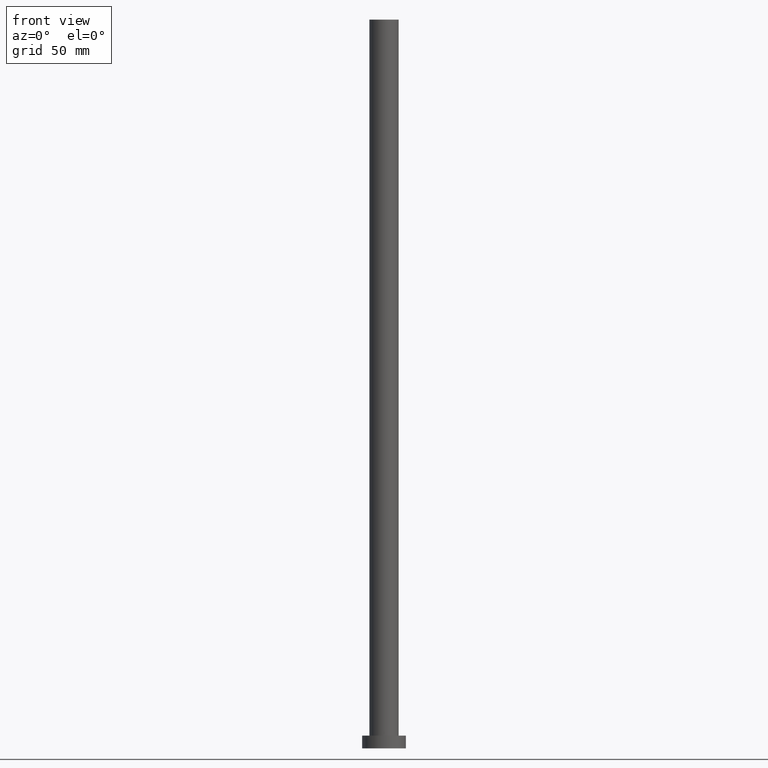
[diagram: clean part render]
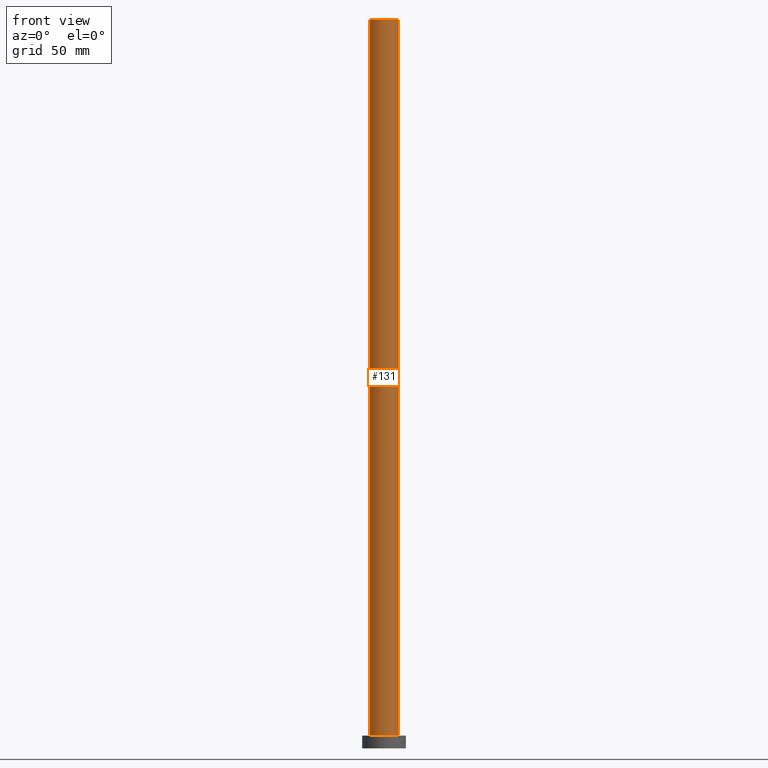
[diagram: same view with one face highlighted and labeled with its STEP entity id]
A machine part, front view. The second image highlights one B-rep face of the part: STEP entity #131.
In plain terms, the highlighted cylindrical surface (edge-blend (fillet) strip) has radius 8 mm, axis along (-0, -0, -1).
Its self-contained STEP definition (entity closure, byte-faithful):
#6 = DIRECTION ( 'NONE',  ( 1.000000000000000000, 0.000000000000000000, 0.000000000000000000 ) ) ;
#9 = CIRCLE ( 'NONE', #115, 8.000000000000000000 ) ;
#36 = VERTEX_POINT ( 'NONE', #97 ) ;
#38 = ORIENTED_EDGE ( 'NONE', *, *, #217, .F. ) ;
#40 = DIRECTION ( 'NONE',  ( -0.000000000000000000, -0.000000000000000000, -1.000000000000000000 ) ) ;
#46 = CARTESIAN_POINT ( 'NONE',  ( 8.000000000000000000, 9.797174393178825657E-16, 7.000000000000000000 ) ) ;
#50 = ORIENTED_EDGE ( 'NONE', *, *, #70, .T. ) ;
#63 = DIRECTION ( 'NONE',  ( -0.000000000000000000, -0.000000000000000000, -1.000000000000000000 ) ) ;
#64 = ORIENTED_EDGE ( 'NONE', *, *, #233, .F. ) ;
#70 = EDGE_CURVE ( 'NONE', #128, #218, #176, .T. ) ;
#73 = LINE ( 'NONE', #136, #83 ) ;
#75 = CARTESIAN_POINT ( 'NONE',  ( 0.000000000000000000, 0.000000000000000000, 7.000000000000000000 ) ) ;
#76 = CARTESIAN_POINT ( 'NONE',  ( 8.000000000000000000, 9.797174393178825657E-16, 400.0000000000000000 ) ) ;
#83 = VECTOR ( 'NONE', #132, 1000.000000000000000 ) ;
#96 = CYLINDRICAL_SURFACE ( 'NONE', #98, 8.000000000000000000 ) ;
#97 = CARTESIAN_POINT ( 'NONE',  ( -8.000000000000000000, 0.000000000000000000, 400.0000000000000000 ) ) ;
#98 = AXIS2_PLACEMENT_3D ( 'NONE', #134, #40, #130 ) ;
#99 = CARTESIAN_POINT ( 'NONE',  ( 8.000000000000000000, 9.797174393178825657E-16, 400.0000000000000000 ) ) ;
#101 = VERTEX_POINT ( 'NONE', #76 ) ;
#115 = AXIS2_PLACEMENT_3D ( 'NONE', #229, #133, #6 ) ;
#116 = LINE ( 'NONE', #99, #175 ) ;
#128 = VERTEX_POINT ( 'NONE', #169 ) ;
#130 = DIRECTION ( 'NONE',  ( -1.000000000000000000, 0.000000000000000000, 0.000000000000000000 ) ) ;
#131 = ADVANCED_FACE ( 'NONE', ( #149 ), #96, .T. ) ;
#132 = DIRECTION ( 'NONE',  ( -0.000000000000000000, -0.000000000000000000, -1.000000000000000000 ) ) ;
#133 = DIRECTION ( 'NONE',  ( 0.000000000000000000, 0.000000000000000000, 1.000000000000000000 ) ) ;
#134 = CARTESIAN_POINT ( 'NONE',  ( 0.000000000000000000, 0.000000000000000000, 400.0000000000000000 ) ) ;
#136 = CARTESIAN_POINT ( 'NONE',  ( -8.000000000000000000, 0.000000000000000000, 400.0000000000000000 ) ) ;
#149 = FACE_OUTER_BOUND ( 'NONE', #243, .T. ) ;
#160 = ORIENTED_EDGE ( 'NONE', *, *, #177, .T. ) ;
#162 = AXIS2_PLACEMENT_3D ( 'NONE', #75, #166, #227 ) ;
#166 = DIRECTION ( 'NONE',  ( 0.000000000000000000, 0.000000000000000000, 1.000000000000000000 ) ) ;
#169 = CARTESIAN_POINT ( 'NONE',  ( -8.000000000000000000, 0.000000000000000000, 7.000000000000000000 ) ) ;
#175 = VECTOR ( 'NONE', #63, 1000.000000000000000 ) ;
#176 = CIRCLE ( 'NONE', #162, 8.000000000000000000 ) ;
#177 = EDGE_CURVE ( 'NONE', #36, #128, #73, .T. ) ;
#217 = EDGE_CURVE ( 'NONE', #36, #101, #9, .T. ) ;
#218 = VERTEX_POINT ( 'NONE', #46 ) ;
#227 = DIRECTION ( 'NONE',  ( 1.000000000000000000, 0.000000000000000000, 0.000000000000000000 ) ) ;
#229 = CARTESIAN_POINT ( 'NONE',  ( 0.000000000000000000, 0.000000000000000000, 400.0000000000000000 ) ) ;
#233 = EDGE_CURVE ( 'NONE', #101, #218, #116, .T. ) ;
#243 = EDGE_LOOP ( 'NONE', ( #64, #38, #160, #50 ) ) ;